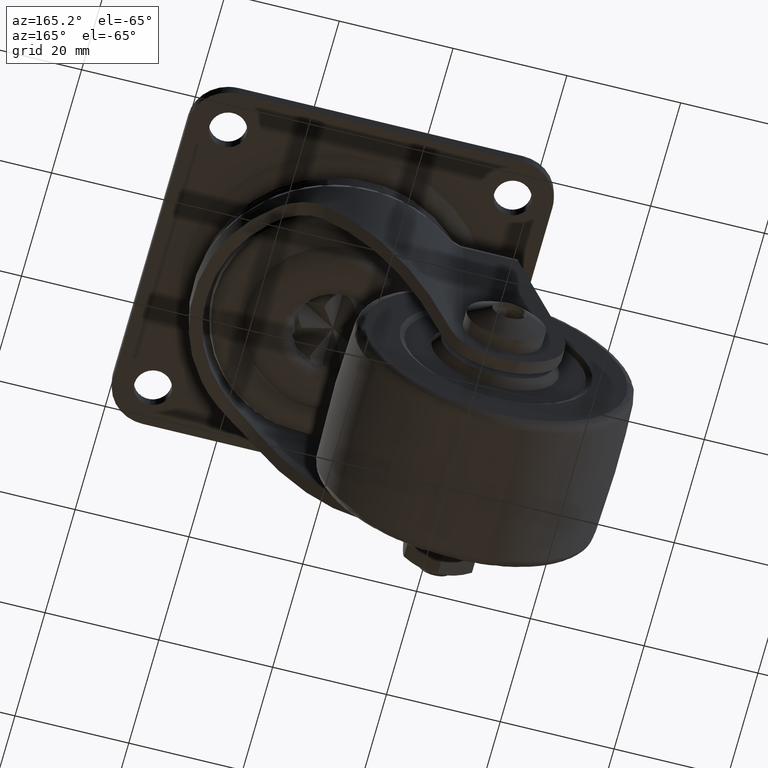
[diagram: clean part render]
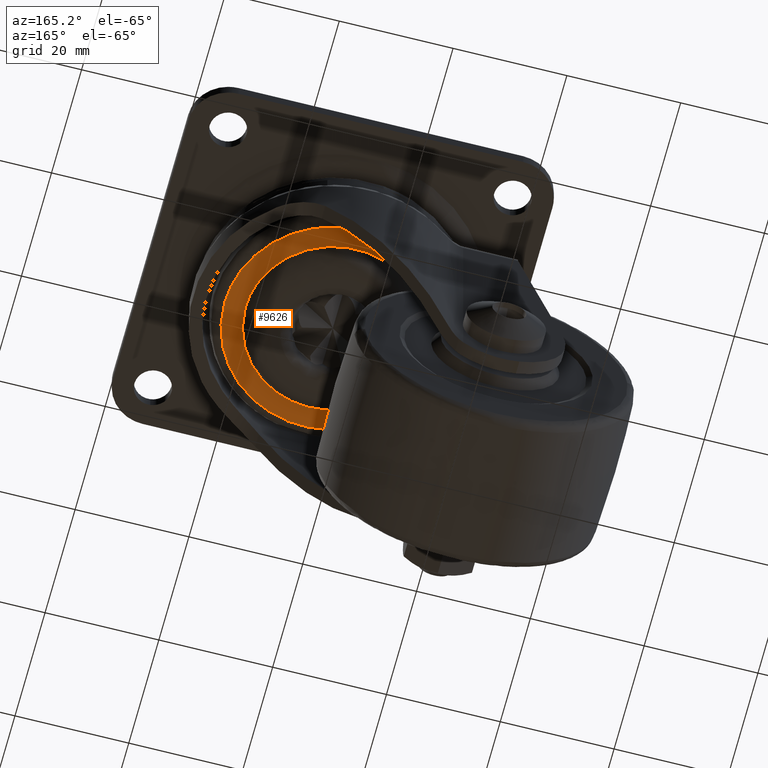
[diagram: same view with one face highlighted and labeled with its STEP entity id]
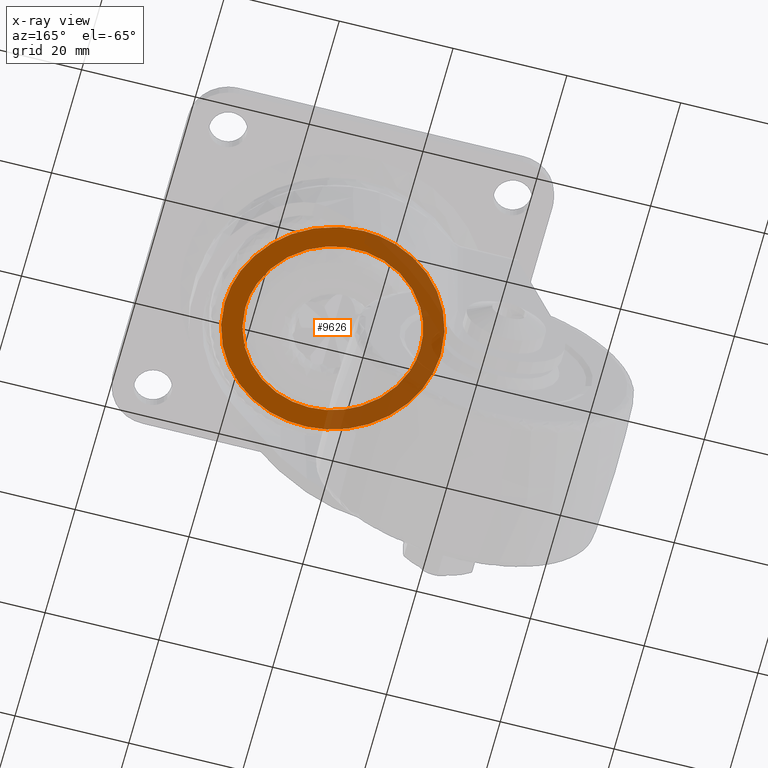
[diagram: x-ray of the same camera — body ghosted, the highlighted face saturated]
A machine part, auxiliary view. The second image highlights one B-rep face of the part: STEP entity #9626.
The next image is the same camera in x-ray: the body ghosted, the highlighted face saturated — about 45% of this face is hidden behind the body in this view.
In plain terms, the highlighted face is a freeform B-spline surface patch.
Its self-contained STEP definition (entity closure, byte-faithful):
#7611=CARTESIAN_POINT('',(-13.370229810172590,7.570674302874471,-16.544493000011219));
#7612=VERTEX_POINT('',#7611);
#7626=CARTESIAN_POINT('',(15.364834999999999,0.0,-16.544492999999999));
#7627=VERTEX_POINT('',#7626);
#7628=CARTESIAN_POINT('',(-13.370229810172583,7.570674302874471,-16.544493000011212));
#7629=CARTESIAN_POINT('',(-8.956913588995521,15.364835000000003,-16.544492999999996));
#7630=CARTESIAN_POINT('',(0.0,15.364834999999999,-16.544492999999999));
#7631=CARTESIAN_POINT('',(15.364835000000005,15.364835000000005,-16.544493000000003));
#7632=CARTESIAN_POINT('',(15.364834999999999,0.0,-16.544492999999999));
#7640=(BOUNDED_CURVE()B_SPLINE_CURVE(2,(#7628,#7629,#7630,#7631,#7632),.UNSPECIFIED.,.F.,.U.)B_SPLINE_CURVE_WITH_KNOTS((3,2,3),(0.083983638484532,0.250000000000000,0.500000000000000),.UNSPECIFIED.)CURVE()GEOMETRIC_REPRESENTATION_ITEM()RATIONAL_B_SPLINE_CURVE((0.869321279800984,0.805499734000148,1.0,0.707106781186548,1.0))REPRESENTATION_ITEM(''));
#7641=EDGE_CURVE('',#7612,#7627,#7640,.T.);
#7643=CARTESIAN_POINT('',(-8.322956616564909,-12.915360921606240,-16.544493000037679));
#7644=VERTEX_POINT('',#7643);
#7645=CARTESIAN_POINT('',(15.364834999999999,0.0,-16.544492999999999));
#7646=CARTESIAN_POINT('',(15.364835000000005,-15.364835000000005,-16.544493000000003));
#7647=CARTESIAN_POINT('',(0.0,-15.364834999999999,-16.544492999999999));
#7648=CARTESIAN_POINT('',(-4.521922531244182,-15.364834999999998,-16.544493000000003));
#7649=CARTESIAN_POINT('',(-8.322956616564909,-12.915360921606243,-16.544493000037679));
#7657=(BOUNDED_CURVE()B_SPLINE_CURVE(2,(#7645,#7646,#7647,#7648,#7649),.UNSPECIFIED.,.F.,.U.)B_SPLINE_CURVE_WITH_KNOTS((3,2,3),(0.500000000000000,0.750000000000000,0.842745822253461),.UNSPECIFIED.)CURVE()GEOMETRIC_REPRESENTATION_ITEM()RATIONAL_B_SPLINE_CURVE((1.0,0.707106781186548,1.0,0.891341510354734,0.863303988445223))REPRESENTATION_ITEM(''));
#7658=EDGE_CURVE('',#7627,#7644,#7657,.T.);
#7709=CARTESIAN_POINT('',(-15.364834999999999,0.0,-16.544492999999999));
#7710=VERTEX_POINT('',#7709);
#7711=CARTESIAN_POINT('',(-8.322956616564909,-12.915360921606240,-16.544493000037686));
#7712=CARTESIAN_POINT('',(-15.364834999999999,-8.377411990875370,-16.544492999999996));
#7713=CARTESIAN_POINT('',(-15.364834999999999,0.0,-16.544492999999999));
#7721=(BOUNDED_CURVE()B_SPLINE_CURVE(2,(#7711,#7712,#7713),.UNSPECIFIED.,.F.,.U.)B_SPLINE_CURVE_WITH_KNOTS((3,3),(0.842745822253461,1.0),.UNSPECIFIED.)CURVE()GEOMETRIC_REPRESENTATION_ITEM()RATIONAL_B_SPLINE_CURVE((0.863303988445223,0.815765270831813,1.0))REPRESENTATION_ITEM(''));
#7722=EDGE_CURVE('',#7644,#7710,#7721,.T.);
#7724=CARTESIAN_POINT('',(-15.364834999999999,0.0,-16.544492999999999));
#7725=CARTESIAN_POINT('',(-15.364834999999999,4.048091148249025,-16.544492999999996));
#7726=CARTESIAN_POINT('',(-13.370229810172582,7.570674302874471,-16.544493000011219));
#7734=(BOUNDED_CURVE()B_SPLINE_CURVE(2,(#7724,#7725,#7726),.UNSPECIFIED.,.F.,.U.)B_SPLINE_CURVE_WITH_KNOTS((3,3),(0.0,0.083983638484532),.UNSPECIFIED.)CURVE()GEOMETRIC_REPRESENTATION_ITEM()RATIONAL_B_SPLINE_CURVE((1.0,0.901607047186400,0.869321279800984))REPRESENTATION_ITEM(''));
#7735=EDGE_CURVE('',#7710,#7612,#7734,.T.);
#7787=CARTESIAN_POINT('',(-18.993999599205960,-0.477471813659773,-16.544492999999999));
#7788=VERTEX_POINT('',#7787);
#7802=CARTESIAN_POINT('',(19.0,0.0,-16.544492999999999));
#7803=VERTEX_POINT('',#7802);
#7804=CARTESIAN_POINT('',(19.0,0.0,-16.544492999999999));
#7805=CARTESIAN_POINT('',(18.999999999999993,-18.999999999999993,-16.544493000000003));
#7806=CARTESIAN_POINT('',(0.0,-19.0,-16.544492999999999));
#7807=CARTESIAN_POINT('',(-18.528379647109738,-19.0,-16.544492999999992));
#7808=CARTESIAN_POINT('',(-18.993999599205956,-0.477471813659773,-16.544492999999999));
#7816=(BOUNDED_CURVE()B_SPLINE_CURVE(2,(#7804,#7805,#7806,#7807,#7808),.UNSPECIFIED.,.F.,.U.)B_SPLINE_CURVE_WITH_KNOTS((3,2,3),(0.500000000000000,0.750000000000000,0.995579891766762),.UNSPECIFIED.)CURVE()GEOMETRIC_REPRESENTATION_ITEM()RATIONAL_B_SPLINE_CURVE((1.0,0.707106781186548,1.0,0.712285260098295,0.989826157674692))REPRESENTATION_ITEM(''));
#7817=EDGE_CURVE('',#7803,#7788,#7816,.T.);
#7819=CARTESIAN_POINT('',(-0.477471813670632,18.993999599319949,-16.544492999999999));
#7820=VERTEX_POINT('',#7819);
#7821=CARTESIAN_POINT('',(-0.477471813670632,18.993999599319945,-16.544492999999999));
#7822=CARTESIAN_POINT('',(-0.238773610517568,18.999999999999996,-16.544493000000003));
#7823=CARTESIAN_POINT('',(0.0,19.0,-16.544492999999999));
#7824=CARTESIAN_POINT('',(18.999999999999993,18.999999999999993,-16.544493000000003));
#7825=CARTESIAN_POINT('',(19.0,0.0,-16.544492999999999));
#7833=(BOUNDED_CURVE()B_SPLINE_CURVE(2,(#7821,#7822,#7823,#7824,#7825),.UNSPECIFIED.,.F.,.U.)B_SPLINE_CURVE_WITH_KNOTS((3,2,3),(0.245579891766615,0.250000000000000,0.500000000000000),.UNSPECIFIED.)CURVE()GEOMETRIC_REPRESENTATION_ITEM()RATIONAL_B_SPLINE_CURVE((0.989826157674360,0.994821521088080,1.0,0.707106781186548,1.0))REPRESENTATION_ITEM(''));
#7834=EDGE_CURVE('',#7820,#7803,#7833,.T.);
#7871=CARTESIAN_POINT('',(-19.0,0.0,-16.544492999999999));
#7872=VERTEX_POINT('',#7871);
#7873=CARTESIAN_POINT('',(-19.0,0.0,-16.544492999999999));
#7874=CARTESIAN_POINT('',(-19.0,18.528379647094184,-16.544492999999996));
#7875=CARTESIAN_POINT('',(-0.477471813670632,18.993999599319945,-16.544492999999999));
#7883=(BOUNDED_CURVE()B_SPLINE_CURVE(2,(#7873,#7874,#7875),.UNSPECIFIED.,.F.,.U.)B_SPLINE_CURVE_WITH_KNOTS((3,3),(0.0,0.245579891766615),.UNSPECIFIED.)CURVE()GEOMETRIC_REPRESENTATION_ITEM()RATIONAL_B_SPLINE_CURVE((1.0,0.712285260098467,0.989826157674360))REPRESENTATION_ITEM(''));
#7884=EDGE_CURVE('',#7872,#7820,#7883,.T.);
#7886=CARTESIAN_POINT('',(-18.993999599205960,-0.477471813659773,-16.544492999999999));
#7887=CARTESIAN_POINT('',(-19.0,-0.238773610509577,-16.544493000000006));
#7888=CARTESIAN_POINT('',(-19.0,0.0,-16.544492999999999));
#7896=(BOUNDED_CURVE()B_SPLINE_CURVE(2,(#7886,#7887,#7888),.UNSPECIFIED.,.F.,.U.)B_SPLINE_CURVE_WITH_KNOTS((3,3),(0.995579891766762,1.0),.UNSPECIFIED.)CURVE()GEOMETRIC_REPRESENTATION_ITEM()RATIONAL_B_SPLINE_CURVE((0.989826157674693,0.994821521088253,1.0))REPRESENTATION_ITEM(''));
#7897=EDGE_CURVE('',#7788,#7872,#7896,.T.);
#9609=CARTESIAN_POINT('',(20.898099926348628,-20.896226219711760,-16.544492999999999));
#9610=CARTESIAN_POINT('',(-20.898100945588059,-20.896226219711760,-16.544492999999999));
#9611=CARTESIAN_POINT('',(20.898099926348628,20.891725944348789,-16.544492999999999));
#9612=CARTESIAN_POINT('',(-20.898100945588052,20.891725944348789,-16.544492999999999));
#9613=B_SPLINE_SURFACE_WITH_KNOTS('',1,1,((#9609,#9611),(#9610,#9612)),.UNSPECIFIED.,.F.,.F.,.U.,(2,2),(2,2),(0.0,41.796200871936684),(0.0,41.787952164060549),.UNSPECIFIED.);
#9614=ORIENTED_EDGE('',*,*,#7884,.T.);
#9615=ORIENTED_EDGE('',*,*,#7834,.T.);
#9616=ORIENTED_EDGE('',*,*,#7817,.T.);
#9617=ORIENTED_EDGE('',*,*,#7897,.T.);
#9618=EDGE_LOOP('',(#9614,#9615,#9616,#9617));
#9619=FACE_OUTER_BOUND('',#9618,.T.);
#9620=ORIENTED_EDGE('',*,*,#7735,.F.);
#9621=ORIENTED_EDGE('',*,*,#7722,.F.);
#9622=ORIENTED_EDGE('',*,*,#7658,.F.);
#9623=ORIENTED_EDGE('',*,*,#7641,.F.);
#9624=EDGE_LOOP('',(#9620,#9621,#9622,#9623));
#9625=FACE_BOUND('',#9624,.T.);
#9626=ADVANCED_FACE('',(#9619,#9625),#9613,.T.);